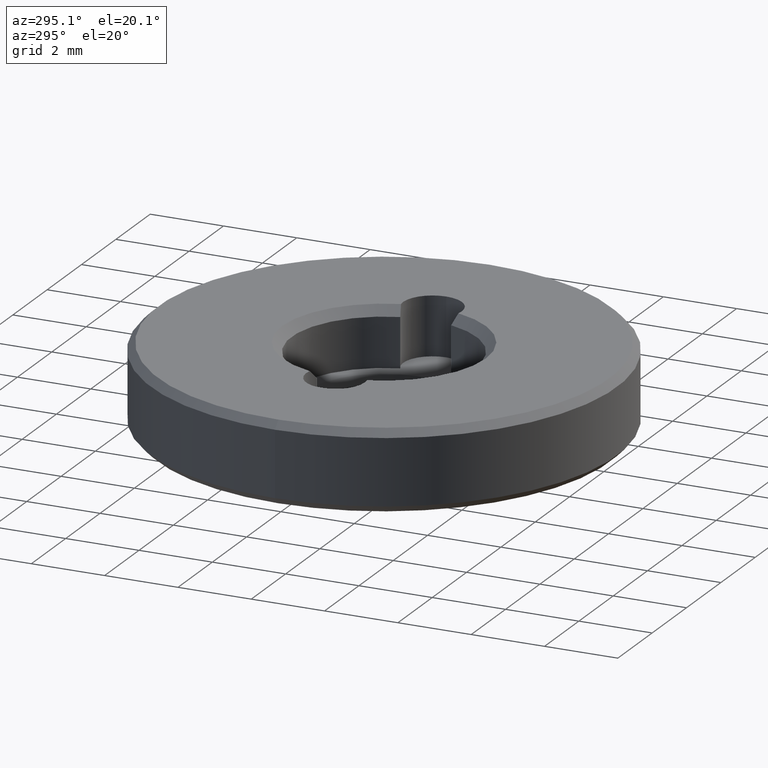
[diagram: clean part render]
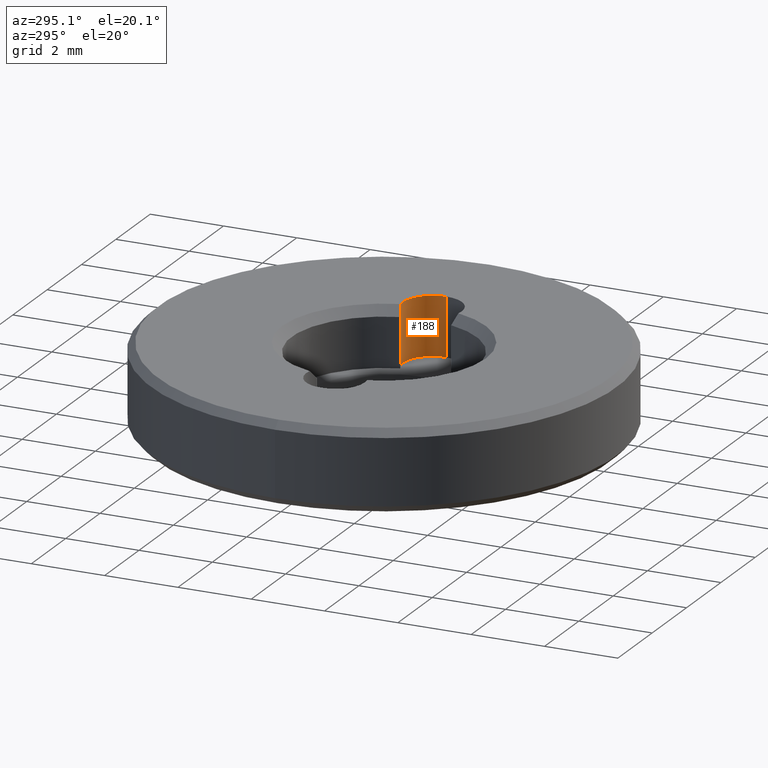
[diagram: same view with one face highlighted and labeled with its STEP entity id]
A machine part, auxiliary view. The second image highlights one B-rep face of the part: STEP entity #188.
In plain terms, the highlighted cylindrical surface (edge-blend (fillet) strip) has radius 0.8 mm, axis along (-0, -0, 1).
Its self-contained STEP definition (entity closure, byte-faithful):
#28 = CARTESIAN_POINT ( 'NONE',  ( 2.824999999999999734, 3.459627207591272175E-16, 2.200000000000000178 ) ) ;
#50 = EDGE_LOOP ( 'NONE', ( #309, #559, #89, #507, #454 ) ) ;
#89 = ORIENTED_EDGE ( 'NONE', *, *, #311, .T. ) ;
#95 = VECTOR ( 'NONE', #567, 1000.000000000000000 ) ;
#113 = DIRECTION ( 'NONE',  ( 1.000000000000000000, 0.000000000000000000, 0.000000000000000000 ) ) ;
#131 = DIRECTION ( 'NONE',  ( 1.000000000000000000, 0.000000000000000000, 0.000000000000000000 ) ) ;
#137 = B_SPLINE_CURVE_WITH_KNOTS ( 'NONE', 3,
 ( #354, #199, #612, #624 ),
 .UNSPECIFIED., .F., .F.,
 ( 4, 4 ),
 ( 2.815520022824704393E-07, 0.0003544014875863180114 ),
 .UNSPECIFIED. ) ;
#171 = CYLINDRICAL_SURFACE ( 'NONE', #329, 0.8000000000000008216 ) ;
#188 = ADVANCED_FACE ( 'NONE', ( #393 ), #171, .F. ) ;
#191 = DIRECTION ( 'NONE',  ( 0.000000000000000000, 0.000000000000000000, 1.000000000000000000 ) ) ;
#199 = CARTESIAN_POINT ( 'NONE',  ( 2.579803107964387276, 0.7661303284904842359, 2.116150911711492721 ) ) ;
#202 = LINE ( 'NONE', #580, #545 ) ;
#227 = VERTEX_POINT ( 'NONE', #510 ) ;
#244 = DIRECTION ( 'NONE',  ( -0.000000000000000000, -0.000000000000000000, -1.000000000000000000 ) ) ;
#250 = DIRECTION ( 'NONE',  ( -1.000000000000000000, 0.000000000000000000, 0.000000000000000000 ) ) ;
#303 = VERTEX_POINT ( 'NONE', #359 ) ;
#305 = CARTESIAN_POINT ( 'NONE',  ( 2.427654867256636706, 0.6943463440424824107, 1.400000000000000133 ) ) ;
#309 = ORIENTED_EDGE ( 'NONE', *, *, #655, .T. ) ;
#311 = EDGE_CURVE ( 'NONE', #227, #647, #349, .T. ) ;
#327 = CARTESIAN_POINT ( 'NONE',  ( 2.824999999999999734, 3.459627207591272175E-16, -1.662741699796954853 ) ) ;
#329 = AXIS2_PLACEMENT_3D ( 'NONE', #327, #601, #113 ) ;
#349 = CIRCLE ( 'NONE', #402, 0.8000000000000008216 ) ;
#354 = CARTESIAN_POINT ( 'NONE',  ( 2.662168141592921700, 0.7832533344248840956, 2.200000000000000178 ) ) ;
#359 = CARTESIAN_POINT ( 'NONE',  ( 3.625000000000000444, 3.459627207591272175E-16, 0.6000000000000003109 ) ) ;
#365 = DIRECTION ( 'NONE',  ( -0.000000000000000000, -0.000000000000000000, 1.000000000000000000 ) ) ;
#385 = EDGE_CURVE ( 'NONE', #303, #227, #202, .T. ) ;
#393 = FACE_OUTER_BOUND ( 'NONE', #50, .T. ) ;
#402 = AXIS2_PLACEMENT_3D ( 'NONE', #28, #191, #250 ) ;
#420 = CARTESIAN_POINT ( 'NONE',  ( 2.427654867256636706, 0.6943463440424820776, 1.949999999999998623 ) ) ;
#440 = VERTEX_POINT ( 'NONE', #420 ) ;
#454 = ORIENTED_EDGE ( 'NONE', *, *, #668, .F. ) ;
#507 = ORIENTED_EDGE ( 'NONE', *, *, #696, .T. ) ;
#510 = CARTESIAN_POINT ( 'NONE',  ( 3.625000000000000444, 3.459627207591272175E-16, 2.200000000000000178 ) ) ;
#521 = LINE ( 'NONE', #305, #95 ) ;
#545 = VECTOR ( 'NONE', #365, 1000.000000000000000 ) ;
#546 = CARTESIAN_POINT ( 'NONE',  ( 2.427654867256636706, 0.6943463440424822997, 0.6000000000000003109 ) ) ;
#559 = ORIENTED_EDGE ( 'NONE', *, *, #385, .T. ) ;
#567 = DIRECTION ( 'NONE',  ( -0.000000000000000000, -0.000000000000000000, 1.000000000000000000 ) ) ;
#580 = CARTESIAN_POINT ( 'NONE',  ( 3.625000000000000444, 3.459627207591272175E-16, -1.662741699796954853 ) ) ;
#600 = CIRCLE ( 'NONE', #637, 0.8000000000000008216 ) ;
#601 = DIRECTION ( 'NONE',  ( -0.000000000000000000, -0.000000000000000000, 1.000000000000000000 ) ) ;
#607 = VERTEX_POINT ( 'NONE', #546 ) ;
#612 = CARTESIAN_POINT ( 'NONE',  ( 2.501625393944903131, 0.7366765571965204762, 2.032759104116573123 ) ) ;
#624 = CARTESIAN_POINT ( 'NONE',  ( 2.427654867256636706, 0.6943463440424820776, 1.949999999999998623 ) ) ;
#637 = AXIS2_PLACEMENT_3D ( 'NONE', #679, #244, #131 ) ;
#647 = VERTEX_POINT ( 'NONE', #665 ) ;
#655 = EDGE_CURVE ( 'NONE', #607, #303, #600, .T. ) ;
#665 = CARTESIAN_POINT ( 'NONE',  ( 2.662168141592921700, 0.7832533344248840956, 2.200000000000000178 ) ) ;
#668 = EDGE_CURVE ( 'NONE', #607, #440, #521, .T. ) ;
#679 = CARTESIAN_POINT ( 'NONE',  ( 2.824999999999999734, 3.459627207591272175E-16, 0.6000000000000003109 ) ) ;
#696 = EDGE_CURVE ( 'NONE', #647, #440, #137, .T. ) ;